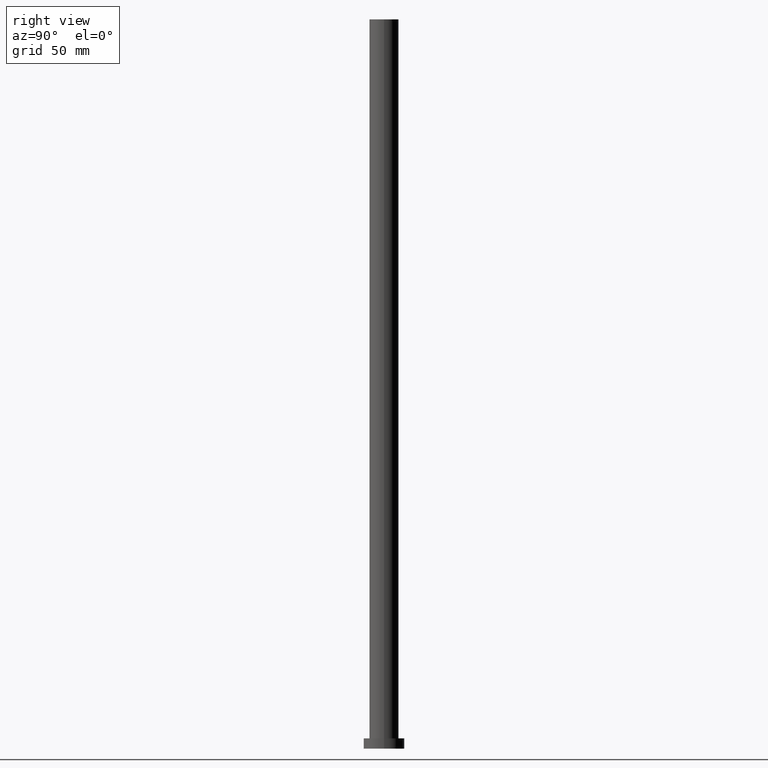
[diagram: clean part render]
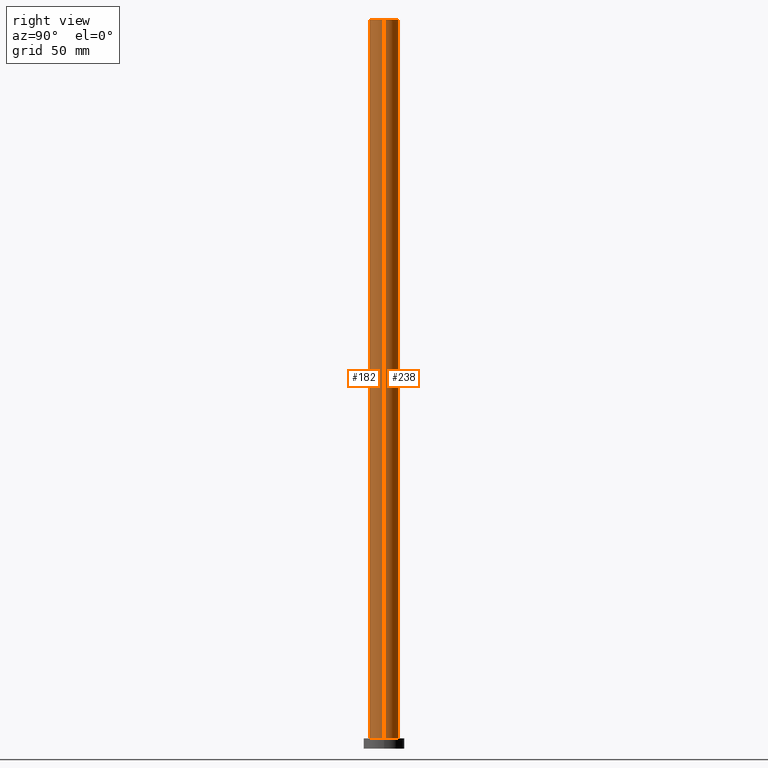
[diagram: same view with one multi-face feature highlighted, each face labeled with its STEP entity id]
A machine part, right view. The highlighted faces form ONE feature: a constant-radius fillet chain: 2 tangent blend faces with common blend radius 10 mm. The faces share edges in the B-rep.
Their STEP definitions:
[1] entity #238 (Cylinder):
#14 = CARTESIAN_POINT ( 'NONE',  ( 10.00000000000000000, 1.224646799147353256E-15, 500.0000000000000000 ) ) ;
#19 = DIRECTION ( 'NONE',  ( 0.000000000000000000, 0.000000000000000000, 1.000000000000000000 ) ) ;
#22 = CYLINDRICAL_SURFACE ( 'NONE', #207, 10.00000000000000000 ) ;
#23 = EDGE_CURVE ( 'NONE', #91, #122, #161, .T. ) ;
#33 = EDGE_CURVE ( 'NONE', #192, #243, #166, .T. ) ;
#39 = CARTESIAN_POINT ( 'NONE',  ( -10.00000000000000000, 0.000000000000000000, 500.0000000000000000 ) ) ;
#45 = CARTESIAN_POINT ( 'NONE',  ( 0.000000000000000000, 0.000000000000000000, 500.0000000000000000 ) ) ;
#66 = DIRECTION ( 'NONE',  ( -1.000000000000000000, 0.000000000000000000, 0.000000000000000000 ) ) ;
#68 = CARTESIAN_POINT ( 'NONE',  ( 10.00000000000000000, 1.224646799147353256E-15, 7.000000000000000000 ) ) ;
#70 = CARTESIAN_POINT ( 'NONE',  ( -10.00000000000000000, 0.000000000000000000, 500.0000000000000000 ) ) ;
#83 = DIRECTION ( 'NONE',  ( 1.000000000000000000, 0.000000000000000000, 0.000000000000000000 ) ) ;
#87 = EDGE_CURVE ( 'NONE', #91, #192, #121, .T. ) ;
#91 = VERTEX_POINT ( 'NONE', #154 ) ;
#93 = CIRCLE ( 'NONE', #235, 10.00000000000000000 ) ;
#98 = DIRECTION ( 'NONE',  ( 1.000000000000000000, 0.000000000000000000, 0.000000000000000000 ) ) ;
#100 = CARTESIAN_POINT ( 'NONE',  ( 0.000000000000000000, 0.000000000000000000, 7.000000000000000000 ) ) ;
#116 = DIRECTION ( 'NONE',  ( 0.000000000000000000, 0.000000000000000000, 1.000000000000000000 ) ) ;
#121 = CIRCLE ( 'NONE', #163, 10.00000000000000000 ) ;
#122 = VERTEX_POINT ( 'NONE', #68 ) ;
#123 = FACE_OUTER_BOUND ( 'NONE', #127, .T. ) ;
#127 = EDGE_LOOP ( 'NONE', ( #128, #200, #151, #220 ) ) ;
#128 = ORIENTED_EDGE ( 'NONE', *, *, #87, .F. ) ;
#138 = CARTESIAN_POINT ( 'NONE',  ( -10.00000000000000000, 0.000000000000000000, 7.000000000000000000 ) ) ;
#140 = DIRECTION ( 'NONE',  ( -0.000000000000000000, -0.000000000000000000, -1.000000000000000000 ) ) ;
#151 = ORIENTED_EDGE ( 'NONE', *, *, #224, .T. ) ;
#154 = CARTESIAN_POINT ( 'NONE',  ( 10.00000000000000000, 1.224646799147353256E-15, 500.0000000000000000 ) ) ;
#161 = LINE ( 'NONE', #14, #198 ) ;
#163 = AXIS2_PLACEMENT_3D ( 'NONE', #188, #19, #83 ) ;
#166 = LINE ( 'NONE', #70, #187 ) ;
#186 = DIRECTION ( 'NONE',  ( -0.000000000000000000, -0.000000000000000000, -1.000000000000000000 ) ) ;
#187 = VECTOR ( 'NONE', #140, 1000.000000000000000 ) ;
#188 = CARTESIAN_POINT ( 'NONE',  ( 0.000000000000000000, 0.000000000000000000, 500.0000000000000000 ) ) ;
#192 = VERTEX_POINT ( 'NONE', #39 ) ;
#198 = VECTOR ( 'NONE', #186, 1000.000000000000000 ) ;
#200 = ORIENTED_EDGE ( 'NONE', *, *, #23, .T. ) ;
#207 = AXIS2_PLACEMENT_3D ( 'NONE', #45, #210, #66 ) ;
#210 = DIRECTION ( 'NONE',  ( -0.000000000000000000, -0.000000000000000000, -1.000000000000000000 ) ) ;
#220 = ORIENTED_EDGE ( 'NONE', *, *, #33, .F. ) ;
#224 = EDGE_CURVE ( 'NONE', #122, #243, #93, .T. ) ;
#235 = AXIS2_PLACEMENT_3D ( 'NONE', #100, #116, #98 ) ;
#238 = ADVANCED_FACE ( 'NONE', ( #123 ), #22, .T. ) ;
#243 = VERTEX_POINT ( 'NONE', #138 ) ;
[2] entity #182 (Cylinder):
#4 = AXIS2_PLACEMENT_3D ( 'NONE', #250, #59, #133 ) ;
#9 = ORIENTED_EDGE ( 'NONE', *, *, #23, .F. ) ;
#14 = CARTESIAN_POINT ( 'NONE',  ( 10.00000000000000000, 1.224646799147353256E-15, 500.0000000000000000 ) ) ;
#21 = AXIS2_PLACEMENT_3D ( 'NONE', #82, #56, #38 ) ;
#23 = EDGE_CURVE ( 'NONE', #91, #122, #161, .T. ) ;
#33 = EDGE_CURVE ( 'NONE', #192, #243, #166, .T. ) ;
#34 = DIRECTION ( 'NONE',  ( 1.000000000000000000, 0.000000000000000000, 0.000000000000000000 ) ) ;
#38 = DIRECTION ( 'NONE',  ( 1.000000000000000000, 0.000000000000000000, 0.000000000000000000 ) ) ;
#39 = CARTESIAN_POINT ( 'NONE',  ( -10.00000000000000000, 0.000000000000000000, 500.0000000000000000 ) ) ;
#42 = EDGE_CURVE ( 'NONE', #243, #122, #90, .T. ) ;
#48 = ORIENTED_EDGE ( 'NONE', *, *, #33, .T. ) ;
#56 = DIRECTION ( 'NONE',  ( 0.000000000000000000, 0.000000000000000000, 1.000000000000000000 ) ) ;
#59 = DIRECTION ( 'NONE',  ( -0.000000000000000000, -0.000000000000000000, -1.000000000000000000 ) ) ;
#68 = CARTESIAN_POINT ( 'NONE',  ( 10.00000000000000000, 1.224646799147353256E-15, 7.000000000000000000 ) ) ;
#70 = CARTESIAN_POINT ( 'NONE',  ( -10.00000000000000000, 0.000000000000000000, 500.0000000000000000 ) ) ;
#79 = EDGE_LOOP ( 'NONE', ( #9, #180, #48, #144 ) ) ;
#82 = CARTESIAN_POINT ( 'NONE',  ( 0.000000000000000000, 0.000000000000000000, 500.0000000000000000 ) ) ;
#86 = EDGE_CURVE ( 'NONE', #192, #91, #129, .T. ) ;
#90 = CIRCLE ( 'NONE', #205, 10.00000000000000000 ) ;
#91 = VERTEX_POINT ( 'NONE', #154 ) ;
#101 = CARTESIAN_POINT ( 'NONE',  ( 0.000000000000000000, 0.000000000000000000, 7.000000000000000000 ) ) ;
#122 = VERTEX_POINT ( 'NONE', #68 ) ;
#129 = CIRCLE ( 'NONE', #21, 10.00000000000000000 ) ;
#133 = DIRECTION ( 'NONE',  ( -1.000000000000000000, 0.000000000000000000, 0.000000000000000000 ) ) ;
#138 = CARTESIAN_POINT ( 'NONE',  ( -10.00000000000000000, 0.000000000000000000, 7.000000000000000000 ) ) ;
#140 = DIRECTION ( 'NONE',  ( -0.000000000000000000, -0.000000000000000000, -1.000000000000000000 ) ) ;
#144 = ORIENTED_EDGE ( 'NONE', *, *, #42, .T. ) ;
#146 = CYLINDRICAL_SURFACE ( 'NONE', #4, 10.00000000000000000 ) ;
#154 = CARTESIAN_POINT ( 'NONE',  ( 10.00000000000000000, 1.224646799147353256E-15, 500.0000000000000000 ) ) ;
#161 = LINE ( 'NONE', #14, #198 ) ;
#166 = LINE ( 'NONE', #70, #187 ) ;
#169 = FACE_OUTER_BOUND ( 'NONE', #79, .T. ) ;
#180 = ORIENTED_EDGE ( 'NONE', *, *, #86, .F. ) ;
#182 = ADVANCED_FACE ( 'NONE', ( #169 ), #146, .T. ) ;
#186 = DIRECTION ( 'NONE',  ( -0.000000000000000000, -0.000000000000000000, -1.000000000000000000 ) ) ;
#187 = VECTOR ( 'NONE', #140, 1000.000000000000000 ) ;
#192 = VERTEX_POINT ( 'NONE', #39 ) ;
#198 = VECTOR ( 'NONE', #186, 1000.000000000000000 ) ;
#205 = AXIS2_PLACEMENT_3D ( 'NONE', #101, #249, #34 ) ;
#243 = VERTEX_POINT ( 'NONE', #138 ) ;
#249 = DIRECTION ( 'NONE',  ( 0.000000000000000000, 0.000000000000000000, 1.000000000000000000 ) ) ;
#250 = CARTESIAN_POINT ( 'NONE',  ( 0.000000000000000000, 0.000000000000000000, 500.0000000000000000 ) ) ;